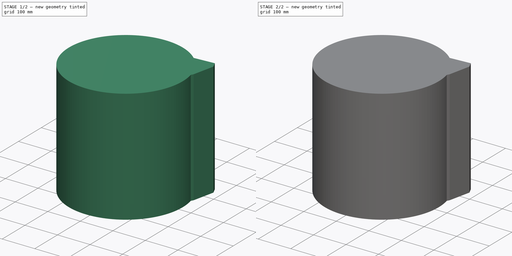
[diagram: build sequence overview — one tinted view per stage of 2, left to right]
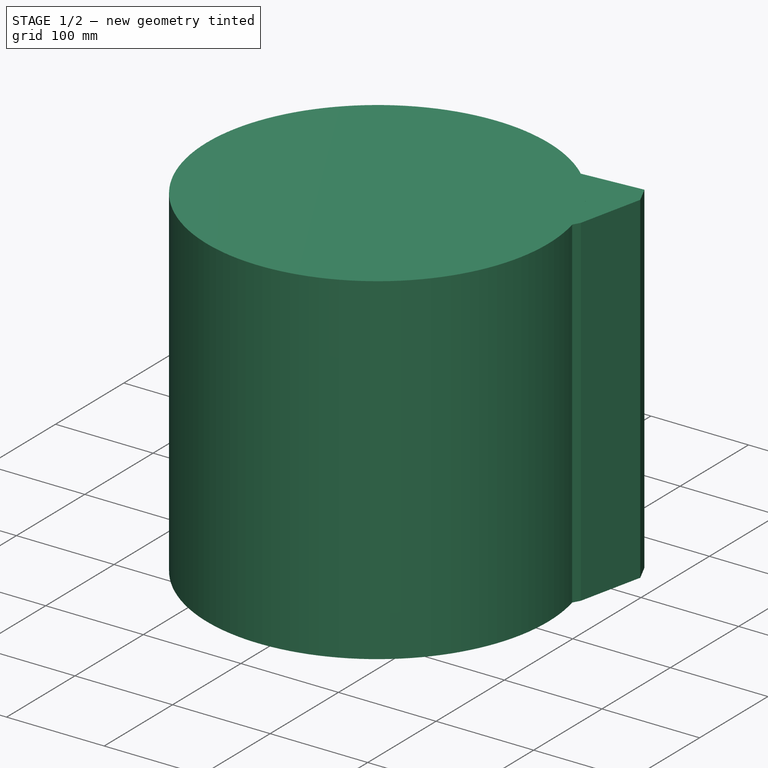
[diagram: stage 1 of 2 — iso view after this stage's code; geometry added in this stage tinted green]
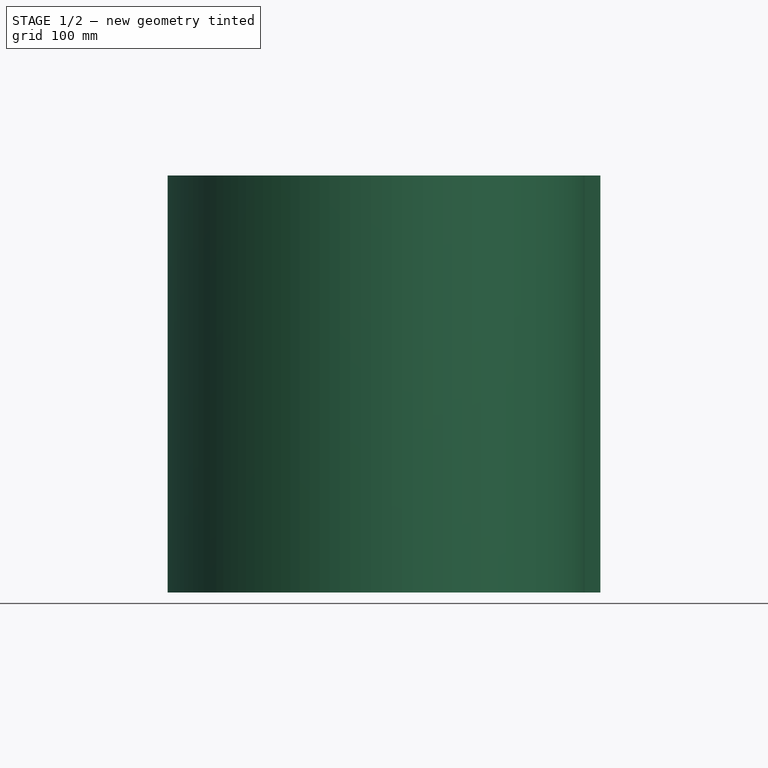
[diagram: stage 1 of 2 — front view after this stage's code; geometry added in this stage tinted green]
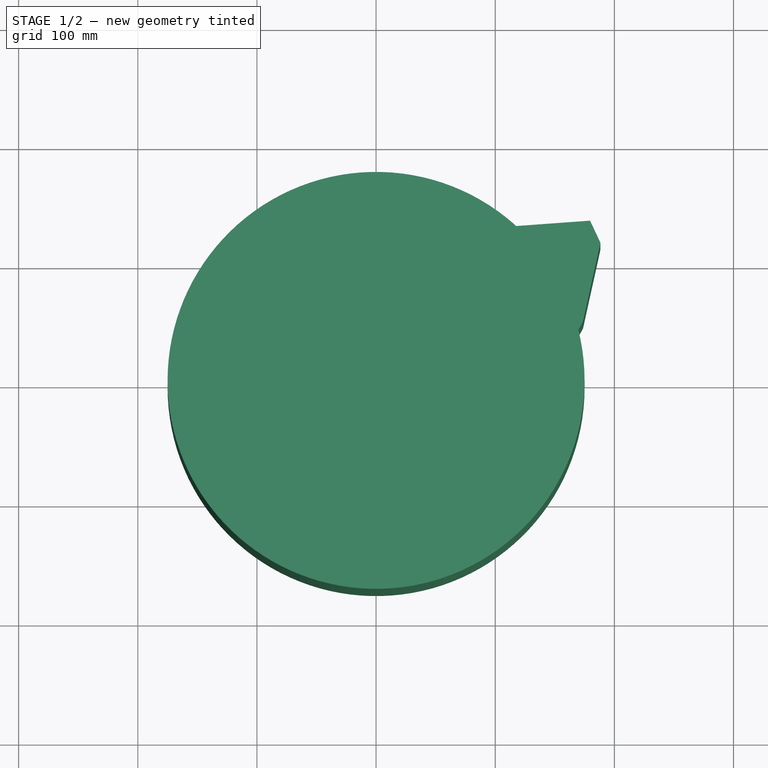
[diagram: stage 1 of 2 — top view after this stage's code; geometry added in this stage tinted green]
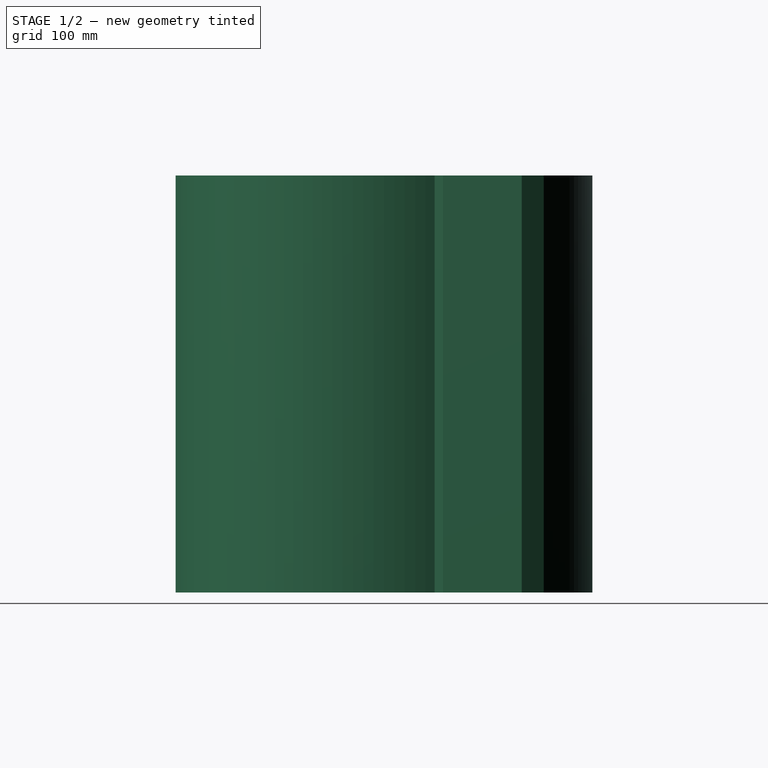
[diagram: stage 1 of 2 — right view after this stage's code; geometry added in this stage tinted green]
FCSTD DOCUMENT  (FreeCAD 2024.113R14555 (Git shallow))
Label: robot_holonome
License: Creative Commons Attribution-NoDerivatives
LicenseURL: http://creativecommons.org/licenses/by-nd/4.0/
objects: App::Link×13, App::DocumentObjectGroup×4, Sketcher::SketchObject×3, PartDesign::Pad×3, PartDesign::Body×3, App::Part×3, App::VRMLObject×1
note: 18 computed .brp shape members not serialized (recipe doc carries the construction recipe); baked Part::Feature solids carry a one-line shape summary decoded from their .brp
EXTERNAL_REF file=mechanical-parts/structures.FCStd obj=Part007
EXTERNAL_REF file=mechanical-parts/colonne-moteur.FCStd obj=Part005
EXTERNAL_REF file=mechanical-parts/structures.FCStd obj=Body024
EXTERNAL_REF file=mechanical-parts/structures.FCStd obj=Part010
EXTERNAL_REF file=mechanical-parts/structures.FCStd obj=Part011
EXTERNAL_REF file=mechanical-parts/structures.FCStd obj=Part012
EXTERNAL_REF file=electronical-parts/beacon_assembled.FCStd obj=Part
EXTERNAL_REF file=electronical-parts/deplacement-sensor.FCStd obj=Part
EXTERNAL_REF file=electronical-parts/battery-assembled.FCStd obj=Part004
EXTERNAL_REF file=mechanical-parts/colonne-moteur.FCStd obj=Part011
EXTERNAL_REF file=mechanical-parts/colonne-moteur.FCStd obj=Part013

FEATURE [PartDesign::Body] Body  label="Limite Non Déployé"
  AutoGroupSolids = false
  ClaimAllChildren = false
  ExportMode = 0
  Group = -> [Sketch,Pad]
  InvalidShape = false
  Origin = -> Origin001
  SingleSolid = true
  Tip = -> Pad
  TreeRank = 26
  ValidateShape = true
  _ExportChildren = -> [Pad]
  _GroupVersion = 1
FEATURE [Sketcher::SketchObject] Sketch001
  ArcFitTolerance = 0
  ExternalBSplineMaxDegree = 0
  ExternalBSplineTolerance = 0
  FullyConstrained = true
  InternalTolerance = 1e-06
  InvalidShape = false
  MakeInternals = false
  MapMode = 2
  TreeRank = 39
  ValidateShape = true
  sketch-geometry (1):
    g0: Circle CenterX=0 CenterY=0 CenterZ=0 NormalX=0 NormalY=0 NormalZ=1 AngleXU=0 Radius=175
  constraints (2):
    c: Coincident(g0,g-1)
    c: Diameter(g0) = 350
FEATURE [PartDesign::Pad] Pad001
  AddSubType = 0
  AlongSketchNormal = false
  AutoTaperInnerAngle = false
  CheckUpToFaceLimits = true
  ClaimChildren = false
  Direction = (0,0,1)
  Fit = 0
  FitJoin = 0
  InnerFit = 0
  InnerFitJoin = 0
  InvalidShape = false
  Length = 350
  Length2 = 100
  Linearize = true
  NewSolid = false
  Profile = -> Sketch001
  Refine = true
  Suppress = false
  TaperInnerAngle = 0
  TaperInnerAngleRev = 0
  TreeRank = 40
  Type = 0
  ValidateShape = true
  _ProfileBasedVersion = 1
FEATURE [PartDesign::Body] Body001  label="Limite Déployé"
  AutoGroupSolids = false
  ClaimAllChildren = false
  ExportMode = 0
  Group = -> [Sketch001,Pad001]
  InvalidShape = false
  Origin = -> Origin002
  SingleSolid = true
  Tip = -> Pad001
  TreeRank = 38
  ValidateShape = true
  _ExportChildren = -> [Pad001]
  _GroupVersion = 1
FEATURE [Sketcher::SketchObject] Sketch002
  ArcFitTolerance = 0
  ExternalBSplineMaxDegree = 0
  ExternalBSplineTolerance = 0
  FullyConstrained = false
  InternalTolerance = 1e-06
  InvalidShape = false
  MakeInternals = false
  MapMode = 2
  TreeRank = 51
  ValidateShape = true
  sketch-geometry (12):
    g0: LineSegment StartX=-85.2682 StartY=-99.392 StartZ=0 EndX=-14.2583 EndY=-111.375 EndZ=0
    g1: LineSegment StartX=-14.2583 StartY=-111.375 StartZ=0 EndX=-3.60679 EndY=-111.819 EndZ=0
    g2: LineSegment StartX=-3.60679 StartY=-111.819 StartZ=0 EndX=86.9308 EndY=-99.392 EndZ=0
    g3: LineSegment StartX=86.9308 StartY=-99.392 StartZ=0 EndX=114.447 EndY=-65.2184 EndZ=0
    g4: LineSegment StartX=114.447 StartY=-65.2184 StartZ=0 EndX=129.537 EndY=-30.1573 EndZ=0
    g5: LineSegment StartX=129.537 StartY=-30.1573 StartZ=0 EndX=173.666 EndY=49.5134 EndZ=0
    g6: LineSegment StartX=173.666 StartY=49.5134 StartZ=0 EndX=188.302 EndY=115.646 EndZ=0
    g7: LineSegment StartX=188.302 StartY=115.646 StartZ=0 EndX=179.629 EndY=134.077 EndZ=0
    g8: LineSegment StartX=179.629 StartY=134.077 StartZ=0 EndX=57.6393 EndY=125.177 EndZ=0
    g9: LineSegment StartX=57.6393 StartY=125.177 StartZ=0 EndX=-44.4375 EndY=125.177 EndZ=0
    g10: LineSegment StartX=-85.2682 StartY=-99.392 StartZ=0 EndX=-127.43 EndY=-23.5001 EndZ=0
    g11: LineSegment StartX=-127.43 StartY=-23.5001 StartZ=0 EndX=-44.4375 EndY=125.177 EndZ=0
  constraints (13):
    c: Coincident(g0,g1)
    c: Coincident(g1,g2)
    c: Coincident(g2,g3)
    c: Coincident(g3,g4)
    c: Coincident(g4,g5)
    c: Coincident(g5,g6)
    c: Coincident(g6,g7)
    c: Coincident(g7,g8)
    c: Coincident(g8,g9)
    c: Horizontal(g9)
    c: Coincident(g0,g10)
    c: Coincident(g10,g11)
    c: Coincident(g11,g9)
FEATURE [PartDesign::Pad] Pad002
  AddSubType = 0
  AlongSketchNormal = false
  AutoTaperInnerAngle = false
  CheckUpToFaceLimits = true
  ClaimChildren = false
  Direction = (0,0,1)
  Fit = 0
  FitJoin = 0
  InnerFit = 0
  InnerFitJoin = 0
  InvalidShape = false
  Length = 350
  Length2 = 100
  Linearize = true
  NewSolid = false
  Profile = -> Sketch002
  Refine = true
  Suppress = false
  TaperInnerAngle = 0
  TaperInnerAngleRev = 0
  TreeRank = 52
  Type = 0
  ValidateShape = true
  _ProfileBasedVersion = 1
FEATURE [PartDesign::Body] Body002  label="Perimètre Déployé"
  AutoGroupSolids = false
  ClaimAllChildren = false
  ExportMode = 0
  Group = -> [Sketch002,Pad002]
  InvalidShape = false
  Origin = -> Origin003
  SingleSolid = true
  Tip = -> Pad002
  TreeRank = 50
  ValidateShape = true
  _ExportChildren = -> [Pad002]
  _GroupVersion = 1
FEATURE [App::DocumentObjectGroup] Group004  label="Périmètres"
  ClaimAllChildren = true
  ExportMode = 1
  Group = -> [Body001,Body,Body002]
  TreeRank = 53
  _GroupVersion = 1
FEATURE [App::Link] Link039  label="SensorDeplacement-assembled"
  AutoLinkLabel = true
  AutoPlacement = true
  LinkPlacement = pos=(-2.51e-14,5.96047e-07,-5) rot=(0,0,1;3.14159rad)
  LinkedObject = -> <external electronical-parts/deplacement-sensor.FCStd>#Part
  Placement = pos=(-2.51e-14,5.96047e-07,-5) rot=(0,0,1;3.14159rad)
  SyncGroupVisibility = false
  TreeRank = 146
  _LinkVersion = 1
FEATURE [App::Link] Link041  label="LogementBatterie - 2024"
  AutoLinkLabel = true
  AutoPlacement = true
  LinkPlacement = pos=(0,120,156) rot=(0,0,1;0rad)
  LinkedObject = -> <external electronical-parts/battery-assembled.FCStd>#Part004
  Placement = pos=(0,120,156) rot=(0,0,1;0rad)
  SyncGroupVisibility = false
  TreeRank = 148
  _LinkVersion = 1
FEATURE [App::Link] Link043  label="EnsembleCarterIHM-V2"
  AutoLinkLabel = true
  AutoPlacement = true
  LinkPlacement = pos=(0,45,0) rot=(0,0,1;0rad)
  LinkedObject = -> <external mechanical-parts/colonne-moteur.FCStd>#Part011
  Placement = pos=(0,45,0) rot=(0,0,1;0rad)
  SyncGroupVisibility = false
  TreeRank = 183
  _LinkVersion = 1
FEATURE [App::VRMLObject] mainBoard_2024001  label="mainBoard-2024"
  Resources = mainBoard_2024001/ | mainBoard_2024001/ | mainBoard_2024001/ | mainBoard_2024001/ | mainBoard_2024001/ | mainBoard_2024001/ | mainBoard_2024001/ | mainBoard_2024001/ | mainBoard_2024001/ | mainBoard_2024001/ | mainBoard_2024001/ | mainBoard_2024001/ | mainBoard_2024001/ | mainBoard_2024001/ | mainBoard_2024001/ | mainBoard_2024001/ | mainBoard_2024001/ | mainBoard_2024001/ | mainBoard_2024001/ | mainBoard_2024001/
  TreeRank = 185
FEATURE [App::Part] Part005  label="MainBoard - 2024"
  ClaimAllChildren = false
  ExportMode = 1
  Group = -> [mainBoard_2024001]
  Origin = -> Origin010
  Placement = pos=(-19,87,262) rot=(-0.57735,0.57735,0.57735;4.18879rad)
  TreeRank = 155
  _ExportChildren = -> [mainBoard_2024001]
  _GroupVersion = 1
FEATURE [App::Part] Part004  label="EnsembleMainBoard - 2024"
  ClaimAllChildren = false
  ExportMode = 1
  Group = -> [Part005]
  Origin = -> Origin009
  TreeRank = 151
  _ExportChildren = -> [Part005]
  _GroupVersion = 1
FEATURE [App::Link] Link044  label="EnsembleTFTCarter"
  AutoLinkLabel = true
  AutoPlacement = true
  LinkPlacement = pos=(0,45,0) rot=(0,0,1;0rad)
  LinkedObject = -> <external mechanical-parts/colonne-moteur.FCStd>#Part013
  Placement = pos=(0,45,0) rot=(0,0,1;0rad)
  SyncGroupVisibility = false
  TreeRank = 186
  _LinkVersion = 1
FEATURE [App::DocumentObjectGroup] Group002  label="Electronique"
  ClaimAllChildren = true
  ExportMode = 1
  Group = -> [Link014,Link041,Part004,Link043,Link044]
  TreeRank = 0
  _GroupVersion = 1
FEATURE [App::Part] Part  label="RobotHolonome"
  ClaimAllChildren = false
  ExportMode = 1
  Group = -> [Group001,Group002,Link,Link001,Link003,Link002,Link004,Link009,Link010,Link011,Link014,Group003,Group004,Body001,Body002,Body,Link039,Link041,Part004,Link043,Link044]
  Origin = -> Origin
  TreeRank = 0
  _ExportChildren = -> [Group001,Group002,Group003,Group004,Link039]
  _GroupVersion = 1

RESOLVED EXTERNAL PARTS (link-assembly join: the EXTERNAL_REF files above that resolve inside this repo's crawl, each included once):
---- part electronical-parts/battery-assembled.FCStd = doc fcstd_eea8ca82b2df (153437 chars; too large to inline — full recipe in that document) ----
---- part electronical-parts/beacon_assembled.FCStd = doc fcstd_203112a6f332 (147791 chars; too large to inline — full recipe in that document) ----
---- part electronical-parts/deplacement-sensor.FCStd = doc fcstd_c66c9dbb0ad4 (59031 chars; too large to inline — full recipe in that document) ----
---- part mechanical-parts/colonne-moteur.FCStd = doc fcstd_d9c18f6708a8 (194697 chars; too large to inline — full recipe in that document) ----
---- part mechanical-parts/structures.FCStd = doc fcstd_f28eb190ed55 (180990 chars; too large to inline — full recipe in that document) ----
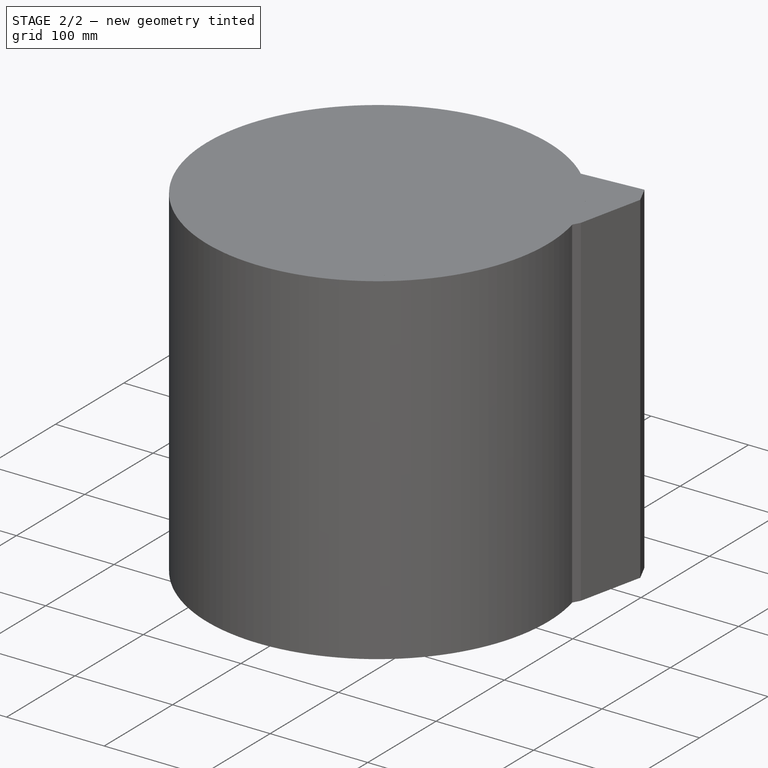
[diagram: stage 2 of 2 — iso view after this stage's code; geometry added in this stage tinted green]
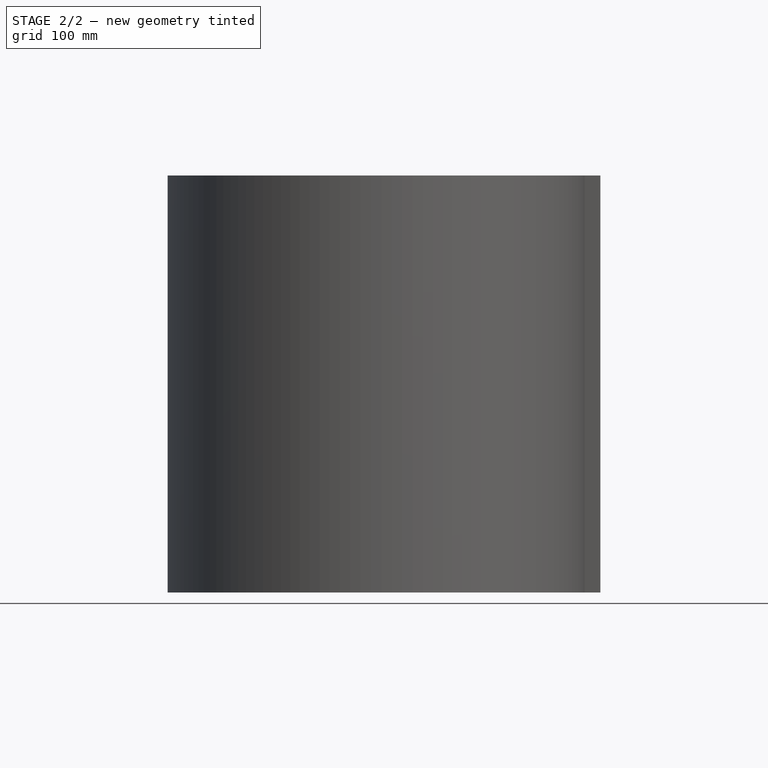
[diagram: stage 2 of 2 — front view after this stage's code; geometry added in this stage tinted green]
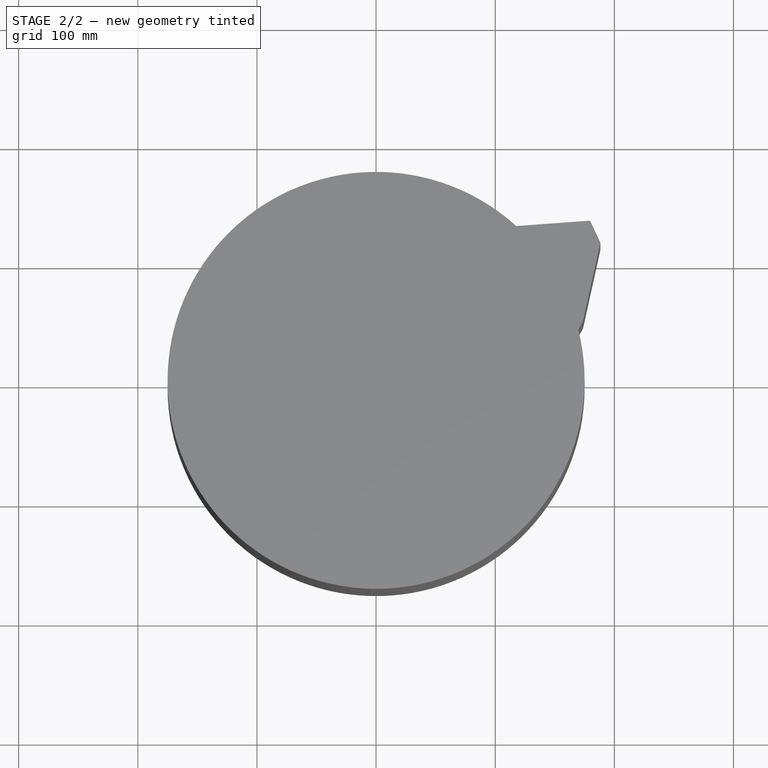
[diagram: stage 2 of 2 — top view after this stage's code; geometry added in this stage tinted green]
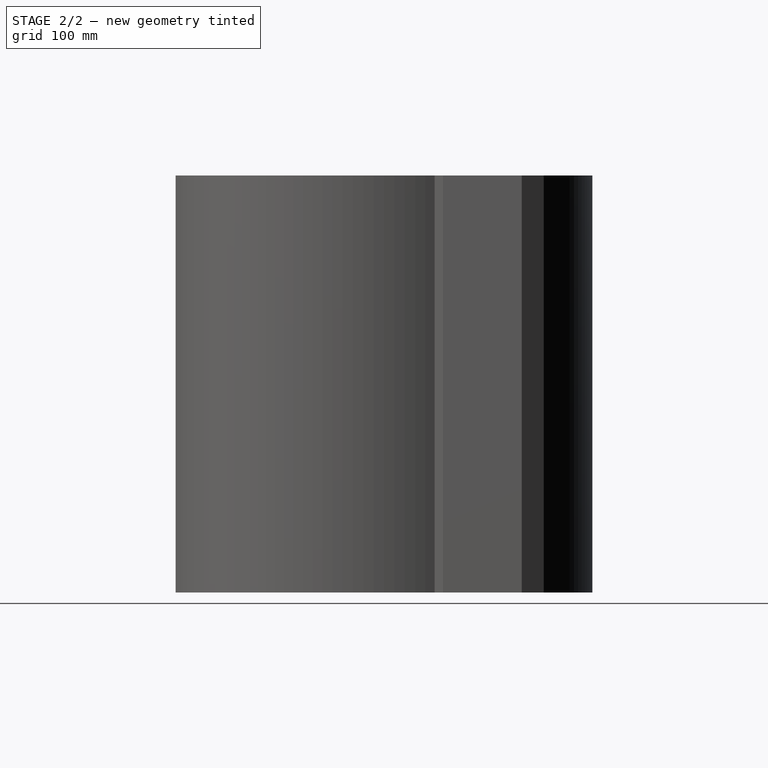
[diagram: stage 2 of 2 — right view after this stage's code; geometry added in this stage tinted green]
FEATURE [App::Link] Link  label="EnsembleSemelle"
  AutoLinkLabel = true
  AutoPlacement = true
  LinkedObject = -> <external mechanical-parts/structures.FCStd>#Part007
  SyncGroupVisibility = false
  TreeRank = 0
  _LinkVersion = 1
FEATURE [App::Link] Link001  label="ColonneMoteur01"
  AutoLinkLabel = true
  AutoPlacement = true
  LinkPlacement = pos=(0,45,-7.62939e-06) rot=(0,0,1;0rad)
  LinkedObject = -> <external mechanical-parts/colonne-moteur.FCStd>#Part005
  Placement = pos=(0,45,-7.62939e-06) rot=(0,0,1;0rad)
  SyncGroupVisibility = false
  TreeRank = 0
  _LinkVersion = 1
FEATURE [App::Link] Link002  label="ColonneMoteur02"
  AutoLinkLabel = true
  AutoPlacement = true
  LinkPlacement = pos=(-38.9711,-22.5,0) rot=(0,0,1;2.0944rad)
  LinkedObject = -> <external mechanical-parts/colonne-moteur.FCStd>#Part005
  Placement = pos=(-38.9711,-22.5,0) rot=(0,0,1;2.0944rad)
  SyncGroupVisibility = false
  TreeRank = 0
  _LinkVersion = 1
FEATURE [App::Link] Link003  label="ColonneMoteur03"
  AutoLinkLabel = true
  AutoPlacement = true
  LinkPlacement = pos=(38.9711,-22.5,0) rot=(0,0,1;4.18879rad)
  LinkedObject = -> <external mechanical-parts/colonne-moteur.FCStd>#Part005
  Placement = pos=(38.9711,-22.5,0) rot=(0,0,1;4.18879rad)
  SyncGroupVisibility = false
  TreeRank = 0
  _LinkVersion = 1
FEATURE [App::Link] Link004  label="PlaqueIntermediaire"
  AutoLinkLabel = true
  AutoPlacement = true
  LinkPlacement = pos=(0,-1.3113e-05,110) rot=(0,0,1;0rad)
  LinkedObject = -> <external mechanical-parts/structures.FCStd>#Body024
  Placement = pos=(0,-1.3113e-05,110) rot=(0,0,1;0rad)
  SyncGroupVisibility = false
  TreeRank = 0
  _LinkVersion = 1
FEATURE [App::Link] Link009  label="Link009(CoinBAU)"
  AutoLinkLabel = true
  AutoPlacement = true
  LinkPlacement = pos=(0,-3.21865e-05,270) rot=(0,0,1;0rad)
  LinkedObject = -> <external mechanical-parts/structures.FCStd>#Part010
  Placement = pos=(0,-3.21865e-05,270) rot=(0,0,1;0rad)
  SyncGroupVisibility = false
  TreeRank = 0
  _LinkVersion = 1
FEATURE [App::Link] Link010  label="Link010(CoinTirette)"
  AutoLinkLabel = true
  AutoPlacement = true
  LinkPlacement = pos=(-2.78743e-05,1.60933e-05,270) rot=(0,0,1;4.18879rad)
  LinkedObject = -> <external mechanical-parts/structures.FCStd>#Part011
  Placement = pos=(-2.78743e-05,1.60933e-05,270) rot=(0,0,1;4.18879rad)
  SyncGroupVisibility = false
  TreeRank = 0
  _LinkVersion = 1
FEATURE [App::Link] Link011  label="Link011(CoinLogo)"
  AutoLinkLabel = true
  AutoPlacement = true
  LinkPlacement = pos=(2.78743e-05,1.60933e-05,270) rot=(0,0,1;2.0944rad)
  LinkedObject = -> <external mechanical-parts/structures.FCStd>#Part012
  Placement = pos=(2.78743e-05,1.60933e-05,270) rot=(0,0,1;2.0944rad)
  SyncGroupVisibility = false
  TreeRank = 0
  _LinkVersion = 1
FEATURE [App::DocumentObjectGroup] Group001  label="Structure"
  ClaimAllChildren = true
  ExportMode = 1
  Group = -> [Link,Link001,Link003,Link002,Link004,Link009,Link010,Link011]
  TreeRank = 0
  _GroupVersion = 1
FEATURE [App::Link] Link014  label="BeaconAssembled"
  AutoLinkLabel = true
  AutoPlacement = true
  LinkPlacement = pos=(0,-3.8147e-05,320) rot=(0,0,1;0rad)
  LinkedObject = -> <external electronical-parts/beacon_assembled.FCStd>#Part
  Placement = pos=(0,-3.8147e-05,320) rot=(0,0,1;0rad)
  SyncGroupVisibility = false
  TreeRank = 0
  _LinkVersion = 1
FEATURE [App::DocumentObjectGroup] Group003  label="Carters"
  ClaimAllChildren = true
  ExportMode = 1
  TreeRank = 1
  _GroupVersion = 1
FEATURE [Sketcher::SketchObject] Sketch
  ArcFitTolerance = 0
  ExternalBSplineMaxDegree = 0
  ExternalBSplineTolerance = 0
  FullyConstrained = true
  InternalTolerance = 1e-06
  InvalidShape = false
  MakeInternals = false
  MapMode = 2
  TreeRank = 27
  ValidateShape = true
  sketch-geometry (1):
    g0: Circle CenterX=0 CenterY=0 CenterZ=0 NormalX=0 NormalY=0 NormalZ=1 AngleXU=0 Radius=163.134
  constraints (2):
    c: Coincident(g0,g-1)
    c: Diameter(g0) = 326.268
FEATURE [PartDesign::Pad] Pad
  AddSubType = 0
  AlongSketchNormal = false
  AutoTaperInnerAngle = false
  CheckUpToFaceLimits = true
  ClaimChildren = false
  Direction = (0,0,1)
  Fit = 0
  FitJoin = 0
  InnerFit = 0
  InnerFitJoin = 0
  InvalidShape = false
  Length = 350
  Length2 = 100
  Linearize = true
  NewSolid = false
  Profile = -> Sketch
  Refine = true
  Suppress = false
  TaperInnerAngle = 0
  TaperInnerAngleRev = 0
  TreeRank = 28
  Type = 0
  ValidateShape = true
  _ProfileBasedVersion = 1
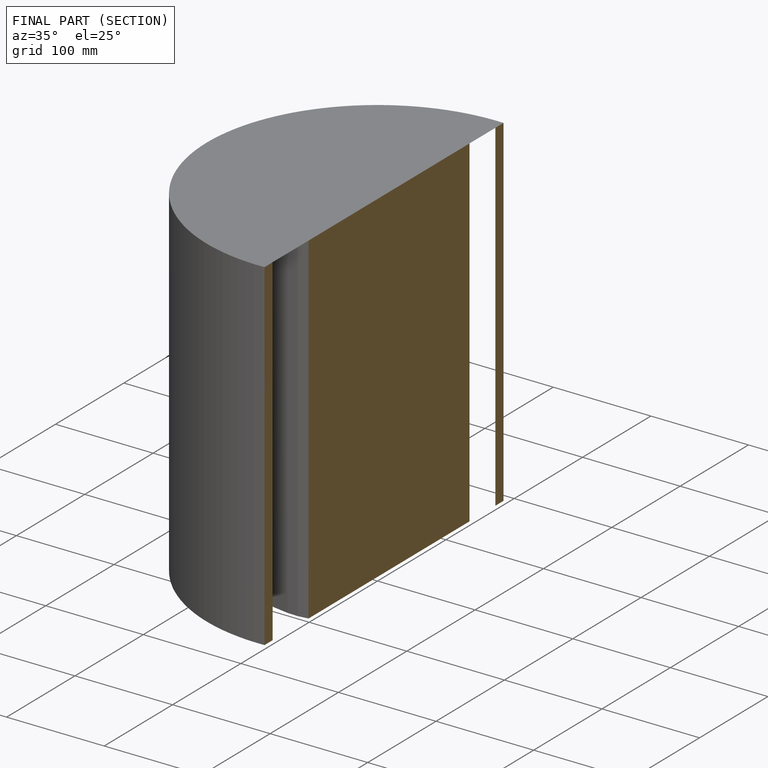
[diagram: finished part — half-section view (interior)]
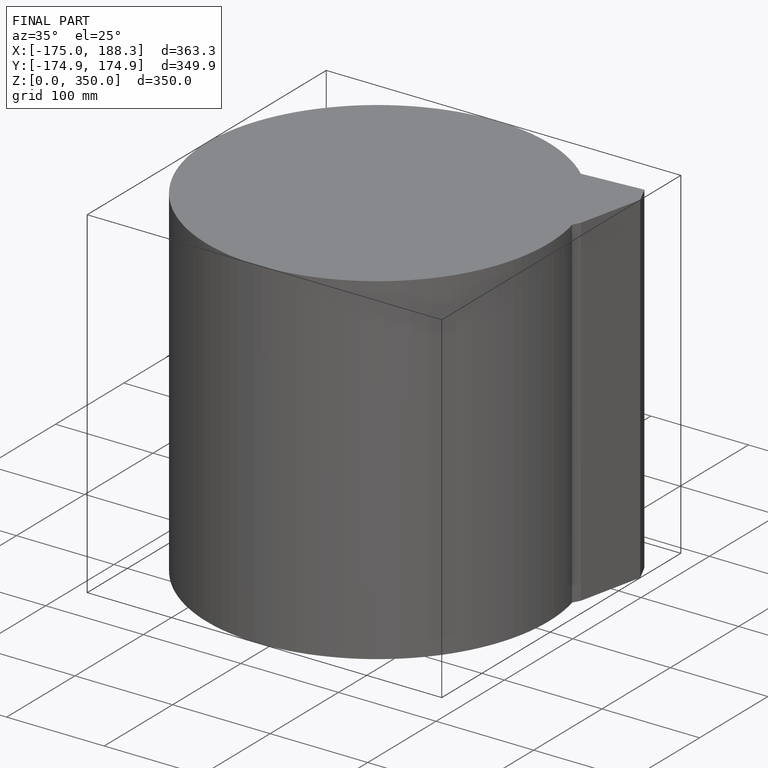
[diagram: finished part — iso view with bounding-box wireframe]
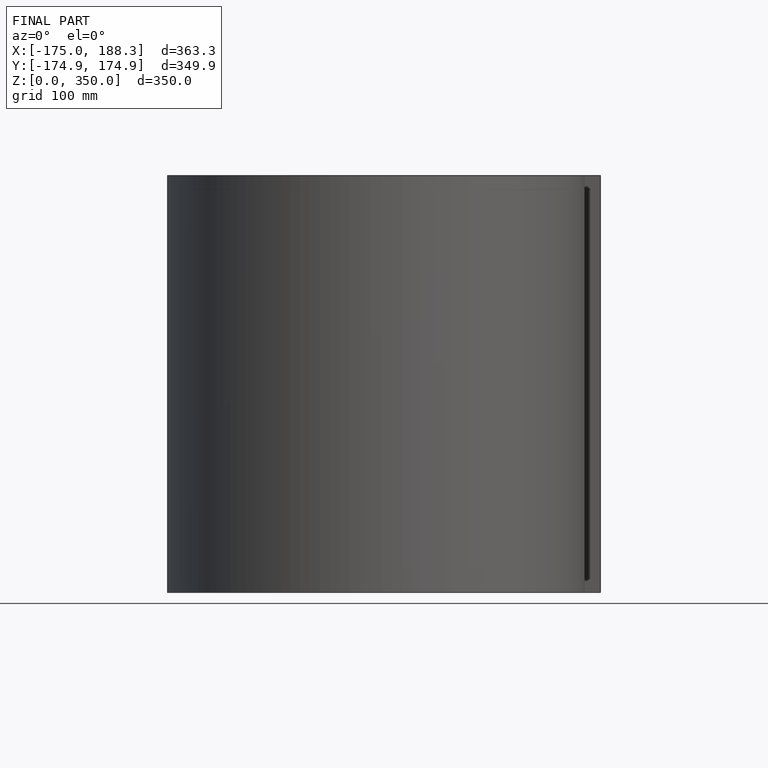
[diagram: finished part — front view with bounding-box wireframe]
